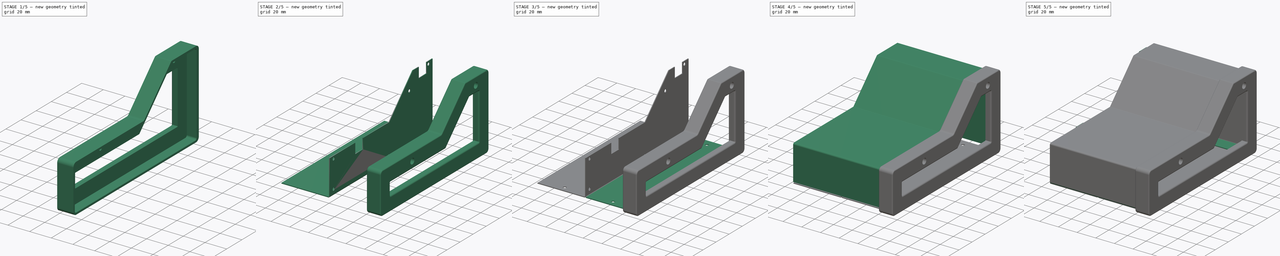
[diagram: build sequence overview — one tinted view per stage of 5, left to right]
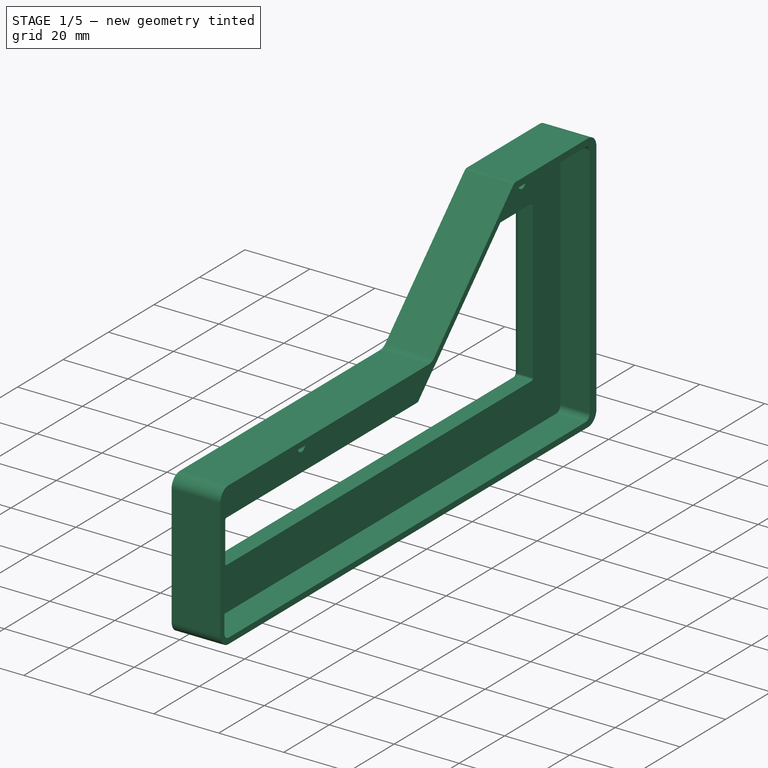
[diagram: stage 1 of 5 — iso view after this stage's code; geometry added in this stage tinted green]
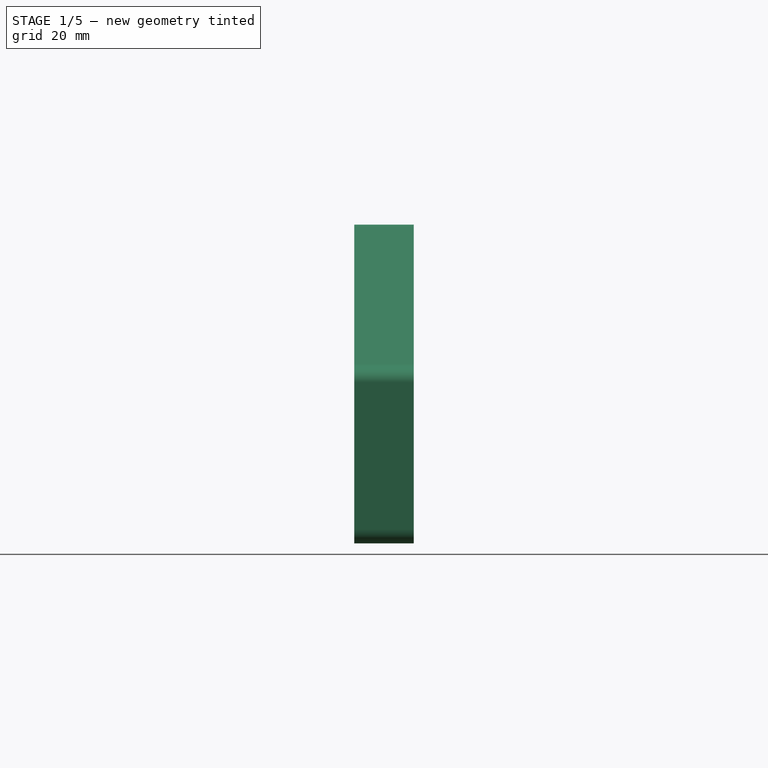
[diagram: stage 1 of 5 — front view after this stage's code; geometry added in this stage tinted green]
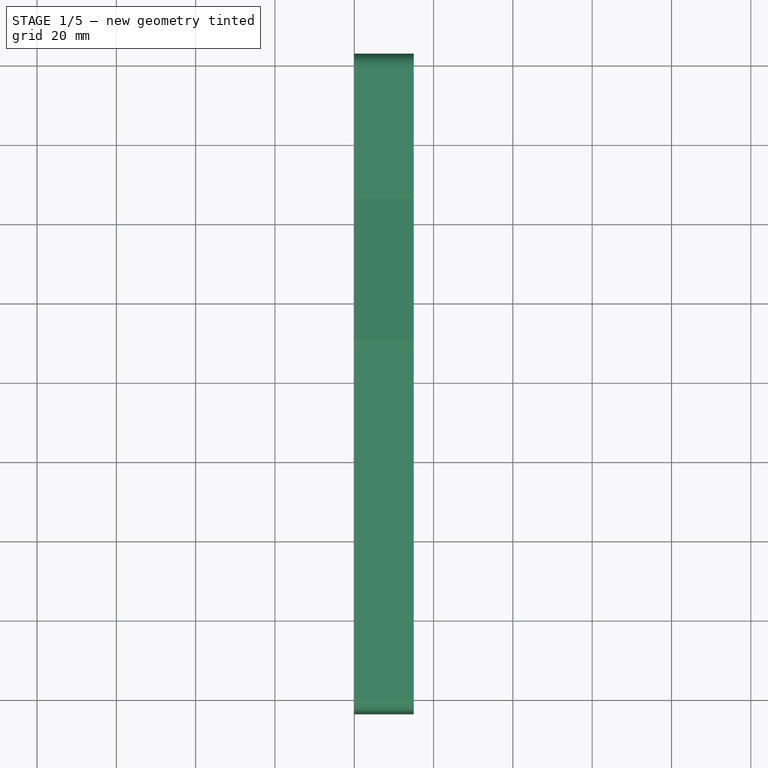
[diagram: stage 1 of 5 — top view after this stage's code; geometry added in this stage tinted green]
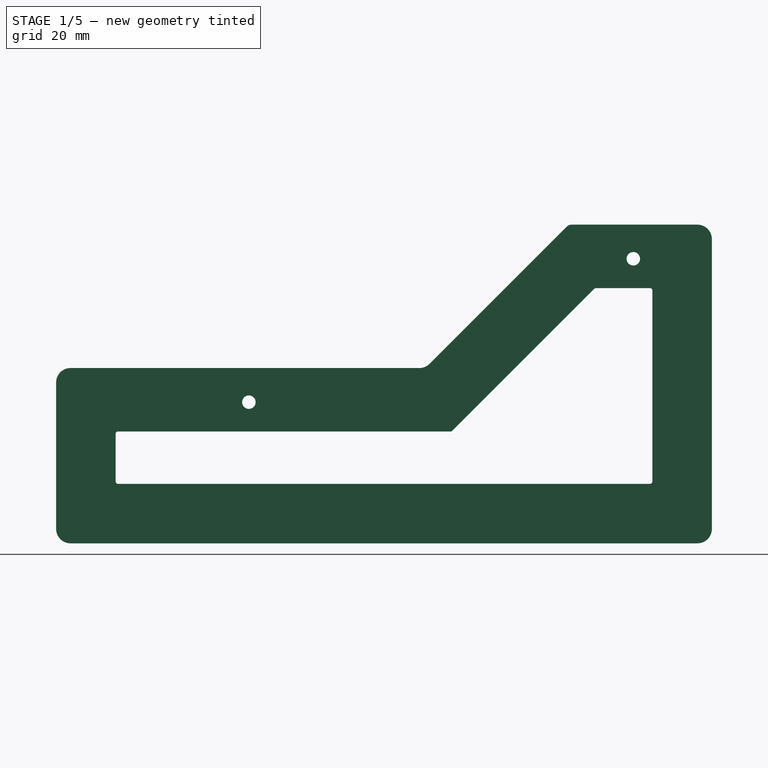
[diagram: stage 1 of 5 — right view after this stage's code; geometry added in this stage tinted green]
FCSTD DOCUMENT  (FreeCAD 0.21R33771 (Git))
Label: ADVtypeH_paramEnclosure
License: Public Domain
LicenseURL: https://en.wikipedia.org/wiki/Public_domain
objects: PartDesign::FeaturePython×10, Sketcher::SketchObject×8, PartDesign::Pad×5, PartDesign::Body×4, PartDesign::Pocket×3, PartDesign::Fillet×2, Spreadsheet::Sheet×1, PartDesign::Hole×1, Part::Mirroring×1
note: 45 computed .brp shape members not serialized (recipe doc carries the construction recipe); baked Part::Feature solids carry a one-line shape summary decoded from their .brp

FEATURE [PartDesign::Body] Body004  label="MetalSx"
  Group = -> [Sketch004,Pad004,Bend011,Sketch005,Pocket]
  Origin = -> Origin004
  Placement = pos=(-51.6,0,0) rot=(0,0,1;0rad)
  Tip = -> Pocket
  expr: .Placement.Base.x = -Spreadsheet.width / 2 - Spreadsheet.thickness * 2
FEATURE [Sketcher::SketchObject] Sketch006
  FullyConstrained = true
  MapMode = 5
  Placement = pos=(0,0,0) rot=(0.57735,0.57735,0.57735;2.0944rad)
  Support = -> [YZ_Plane005]
  expr: Constraints[0] = Spreadsheet.thickness * 2 + 2
  expr: Constraints[15] = Spreadsheet.thickness * 2 + 2
  expr: Constraints[16] = Spreadsheet.thickness * 2
  expr: Constraints[22] = -Spreadsheet.thickness
  expr: Constraints[23] = -Spreadsheet.height - Spreadsheet.thickness * 2 - 0.2
  expr: Constraints[27] = Spreadsheet.lengthC - 2
  expr: Constraints[28] = Spreadsheet.lengthB / 1.4142 + Spreadsheet.thickness * 2 + 2
  expr: Constraints[29] = Spreadsheet.lengthA + Spreadsheet.lengthB / 1.4142 + Spreadsheet.lengthC + Spreadsheet.thickness + 2
  expr: Constraints[32] = -Spreadsheet.thickness - 5
  expr: Constraints[33] = Spreadsheet.lengthC / 2
  expr: Constraints[34] = Spreadsheet.lengthB / 1.4142 - 5
  expr: Constraints[35] = Spreadsheet.lengthC + Spreadsheet.lengthB / 1.4142 + Spreadsheet.lengthA / 2 + Spreadsheet.thickness * 2
  sketch-geometry (26):
    g0: ArcOfCircle CenterX=0 CenterY=-0.8 CenterZ=0 NormalX=0 NormalY=0 NormalZ=1 AngleXU=0 Radius=3.6 StartAngle=1.5708 EndAngle=3.14159
    g1: LineSegment StartX=4e-16 StartY=2.8 StartZ=0 EndX=88 EndY=2.8 EndZ=0
    g2: ArcOfCircle CenterX=88 CenterY=6.4 CenterZ=0 NormalX=0 NormalY=0 NormalZ=1 AngleXU=0 Radius=3.6 StartAngle=4.71239 EndAngle=5.49779
    g3: LineSegment StartX=90.5456 StartY=3.85442 StartZ=0 EndX=125.178 EndY=38.487 EndZ=0
    g4: ArcOfCircle CenterX=126.31 CenterY=37.3557 CenterZ=0 NormalX=0 NormalY=0 NormalZ=1 AngleXU=0 Radius=1.6 StartAngle=1.5708 EndAngle=2.35619
    g5: LineSegment StartX=126.31 StartY=38.9557 StartZ=0 EndX=158.156 EndY=38.9557 EndZ=0
    g6: ArcOfCircle CenterX=158.156 CenterY=35.3557 CenterZ=0 NormalX=0 NormalY=0 NormalZ=1 AngleXU=0 Radius=3.6 StartAngle=8e-16 EndAngle=1.5708
    g7: LineSegment StartX=161.756 StartY=35.3557 StartZ=0 EndX=161.756 EndY=-37.8 EndZ=0
    g8: ArcOfCircle CenterX=158.156 CenterY=-37.8 CenterZ=0 NormalX=0 NormalY=0 NormalZ=1 AngleXU=0 Radius=3.6 StartAngle=4.71239 EndAngle=6.28319
    g9: LineSegment StartX=158.156 StartY=-41.4 StartZ=0 EndX=0 EndY=-41.4 EndZ=0
    g10: ArcOfCircle CenterX=-1e-16 CenterY=-37.8 CenterZ=0 NormalX=0 NormalY=0 NormalZ=1 AngleXU=0 Radius=3.6 StartAngle=3.14159 EndAngle=4.71239
    g11: LineSegment StartX=-3.6 StartY=-0.8 StartZ=0 EndX=-3.6 EndY=-37.8 EndZ=0
    g12: Circle CenterX=45 CenterY=-5.8 CenterZ=0 NormalX=0 NormalY=0 NormalZ=1 AngleXU=0 Radius=1.65
    g13: Circle CenterX=141.956 CenterY=30.3557 CenterZ=0 NormalX=0 NormalY=0 NormalZ=1 AngleXU=0 Radius=1.65
    g14: LineSegment StartX=12 StartY=-13.2 StartZ=0 EndX=95.8701 EndY=-13.2 EndZ=0
    g15: LineSegment StartX=96.2943 StartY=-13.0243 StartZ=0 EndX=132.099 EndY=22.7799 EndZ=0
    g16: LineSegment StartX=132.523 StartY=22.9557 StartZ=0 EndX=146.156 EndY=22.9557 EndZ=0
    g17: LineSegment StartX=146.756 StartY=22.3557 StartZ=0 EndX=146.756 EndY=-25.8 EndZ=0
    g18: LineSegment StartX=146.156 StartY=-26.4 StartZ=0 EndX=12 EndY=-26.4 EndZ=0
    g19: LineSegment StartX=11.4 StartY=-13.8 StartZ=0 EndX=11.4 EndY=-25.8 EndZ=0
    g20: ArcOfCircle CenterX=12 CenterY=-13.8 CenterZ=0 NormalX=0 NormalY=0 NormalZ=1 AngleXU=0 Radius=0.6 StartAngle=1.5708 EndAngle=3.14159
    g21: ArcOfCircle CenterX=12 CenterY=-25.8 CenterZ=0 NormalX=0 NormalY=0 NormalZ=1 AngleXU=0 Radius=0.6 StartAngle=3.14159 EndAngle=4.71239
    g22: ArcOfCircle CenterX=95.8701 CenterY=-12.6 CenterZ=0 NormalX=0 NormalY=0 NormalZ=1 AngleXU=0 Radius=0.6 StartAngle=4.71239 EndAngle=5.49779
    g23: ArcOfCircle CenterX=132.523 CenterY=22.3557 CenterZ=0 NormalX=0 NormalY=0 NormalZ=1 AngleXU=0 Radius=0.6 StartAngle=1.5708 EndAngle=2.35619
    g24: ArcOfCircle CenterX=146.156 CenterY=22.3557 CenterZ=0 NormalX=0 NormalY=0 NormalZ=1 AngleXU=0 Radius=0.6 StartAngle=-1.8e-15 EndAngle=1.5708
    g25: ArcOfCircle CenterX=146.156 CenterY=-25.8 CenterZ=0 NormalX=0 NormalY=0 NormalZ=1 AngleXU=0 Radius=0.6 StartAngle=4.71239 EndAngle=6.28319
  constraints (66):
    c: Radius(g0) = 3.6
    c: Horizontal(g1)
    c: Horizontal(g5)
    c: Tangent(g3,g2) = -1.5708
    c: Tangent(g2,g1) = -1.5708
    c: Tangent(g4,g3) = 1.5708
    c: Tangent(g5,g4) = 1.5708
    c: Vertical(g7)
    c: Tangent(g8,g7) = 1.5708
    c: Horizontal(g9)
    c: Vertical(g11)
    c: Tangent(g1,g0) = 1.5708
    c: Tangent(g11,g0) = -1.5708
    c: Tangent(g11,g10) = -1.5708
    c: Tangent(g10,g9) = 1.5708
    c: Radius(g2) = 3.6
    c: Radius(g4) = 1.6
    c: Tangent(g9,g8) = 1.5708
    c: Tangent(g6,g5) = 1.5708
    c: Tangent(g7,g6) = 1.5708
    c: Angle(g3) = 0.785398
    c: PointOnObject(g0,g-2)
    c: DistanceY(g0) = -0.8
    c: DistanceY(g10) = -37.8
    c: Equal(g10,g0)
    c: Equal(g0,g8)
    c: Equal(g0,g6)
    c: DistanceX(g1,g1) = 88
    c: DistanceY(g4) = 38.9557
    c: DistanceX(g8) = 158.156
    c: Equal(g12,g13)
    c: Diameter(g13) = 3.3
    c: DistanceY(g12) = -5.8
    c: DistanceX(g12) = 45
    c: DistanceY(g13) = 30.3557
    c: DistanceX(g13) = 141.956
    c: Horizontal(g14)
    c: Horizontal(g16)
    c: Vertical(g17)
    c: Horizontal(g18)
    c: Vertical(g19)
    c: Tangent(g25,g17) = 1.5708
    c: Tangent(g25,g18) = 1.5708
    c: Tangent(g17,g24) = 1.5708
    c: Tangent(g24,g16) = 1.5708
    c: Tangent(g23,g15) = 1.5708
    c: Tangent(g23,g16) = 1.5708
    c: Tangent(g22,g15) = -1.5708
    c: Tangent(g22,g14) = -1.5708
    c: Tangent(g20,g14) = 1.5708
    c: Tangent(g20,g19) = -1.5708
    c: Tangent(g21,g19) = -1.5708
    c: Tangent(g21,g18) = 1.5708
    c: Radius(g20) = 0.6
    c: Equal(g20,g21)
    c: Equal(g21,g25)
    c: Equal(g25,g24)
    c: Equal(g24,g23)
    c: Parallel(g15,g3)
    c: DistanceY(g16,g5) = 16
    c: DistanceX(g17,g6) = 15
    c: DistanceY(g8,g18) = 15
    c: Distance(g2,g15) = 16
    c: DistanceX(g0,g19) = 15
    c: DistanceY(g14,g0) = 16
    c: Equal(g20,g22)
FEATURE [PartDesign::Pad] Pad005
  Direction = (1,-2e-16,3e-16)
  Length = 15
  Length2 = 10
  Placement = pos=(0,0,0) rot=(1,1,1;2.0944rad)
  Profile = -> Sketch006
  ReferenceAxis = -> Sketch006 [N_Axis]
  Type = 0
FEATURE [Sketcher::SketchObject] Sketch007
  FullyConstrained = true
  MapMode = 5
  Placement = pos=(15,-6.7e-15,5e-15) rot=(0.57735,0.57735,0.57735;2.0944rad)
  Support = -> [Pad005]
  expr: Constraints[17] = -Spreadsheet.thickness
  expr: Constraints[18] = Spreadsheet.thickness * 2 + 0.2
  expr: Constraints[19] = Spreadsheet.height + Spreadsheet.thickness + 0.2
  expr: Constraints[27] = Spreadsheet.lengthC - Spreadsheet.thickness / 2.8284 - 0.2
  expr: Constraints[28] = Spreadsheet.lengthB / 1.4142 + Spreadsheet.thickness * 2
  expr: Constraints[29] = Spreadsheet.lengthA
  sketch-geometry (12):
    g0: LineSegment StartX=-1.8 StartY=-0.8 StartZ=0 EndX=-1.8 EndY=-37.8 EndZ=0
    g1: LineSegment StartX=0 StartY=-39.6 StartZ=0 EndX=156.964 EndY=-39.6 EndZ=0
    g2: LineSegment StartX=158.764 StartY=-37.8 StartZ=0 EndX=158.764 EndY=35.1557 EndZ=0
    g3: LineSegment StartX=126.964 StartY=36.9557 StartZ=0 EndX=156.964 EndY=36.9557 EndZ=0
    g4: LineSegment StartX=125.691 StartY=36.4285 StartZ=0 EndX=90.7899 EndY=1.52721 EndZ=0
    g5: LineSegment StartX=-2e-16 StartY=1 StartZ=0 EndX=89.5172 EndY=1 EndZ=0
    g6: ArcOfCircle CenterX=0 CenterY=-0.8 CenterZ=0 NormalX=0 NormalY=0 NormalZ=1 AngleXU=0 Radius=1.8 StartAngle=1.5708 EndAngle=3.14159
    g7: ArcOfCircle CenterX=0 CenterY=-37.8 CenterZ=0 NormalX=0 NormalY=0 NormalZ=1 AngleXU=0 Radius=1.8 StartAngle=3.14159 EndAngle=4.71239
    g8: ArcOfCircle CenterX=156.964 CenterY=-37.8 CenterZ=0 NormalX=0 NormalY=0 NormalZ=1 AngleXU=0 Radius=1.8 StartAngle=4.71239 EndAngle=6.28319
    g9: ArcOfCircle CenterX=156.964 CenterY=35.1557 CenterZ=0 NormalX=0 NormalY=0 NormalZ=1 AngleXU=0 Radius=1.8 StartAngle=-1.8e-15 EndAngle=1.5708
    g10: ArcOfCircle CenterX=126.964 CenterY=35.1557 CenterZ=0 NormalX=0 NormalY=0 NormalZ=1 AngleXU=0 Radius=1.8 StartAngle=1.5708 EndAngle=2.35619
    g11: ArcOfCircle CenterX=89.5172 CenterY=2.8 CenterZ=0 NormalX=0 NormalY=0 NormalZ=1 AngleXU=0 Radius=1.8 StartAngle=4.71239 EndAngle=5.49779
  constraints (30):
    c: Vertical(g0)
    c: Horizontal(g1)
    c: Vertical(g2)
    c: Horizontal(g3)
    c: Horizontal(g5)
    c: Tangent(g6,g5) = 1.5708
    c: Tangent(g6,g0) = -1.5708
    c: Tangent(g7,g0) = -1.5708
    c: Tangent(g8,g1) = -1.5708
    c: Tangent(g8,g2) = -1.5708
    c: Tangent(g9,g3) = 1.5708
    c: Tangent(g9,g2) = -1.5708
    c: Tangent(g10,g3) = 1.5708
    c: Tangent(g10,g4) = -1.5708
    c: Tangent(g11,g5) = -1.5708
    c: Tangent(g11,g4) = 1.5708
    c: PointOnObject(g6,g-2)
    c: DistanceY(g6) = -0.8
    c: Radius(g6) = 1.8
    c: DistanceY(g0,g0) = 37
    c: Tangent(g7,g1) = -1.5708
    c: PointOnObject(g7,g-2)
    c: Equal(g6,g9)
    c: Equal(g6,g8)
    c: Angle(g4) = -2.35619
    c: Equal(g6,g11)
    c: Equal(g6,g10)
    c: DistanceX(g-1,g11) = 89.5172
    c: DistanceY(g3) = 36.9557
    c: DistanceX(g3,g3) = 30
FEATURE [PartDesign::Pocket] Pocket001
  BaseFeature = -> Pad005
  Direction = (-1,4e-16,-4e-16)
  Length = 9
  Length2 = 5
  Placement = pos=(0,0,0) rot=(1,1,1;2.0944rad)
  Profile = -> Sketch007
  ReferenceAxis = -> Sketch007 [N_Axis]
  Type = 0
FEATURE [PartDesign::Hole] Hole
  BaseFeature = -> Pocket001
  CustomThreadClearance = 0
  Depth = 25
  DepthType = 0
  Diameter = 3.4
  DrillForDepth = false
  DrillPoint = 1
  DrillPointAngle = 118
  HoleCutCountersinkAngle = 90
  HoleCutCustomValues = false
  HoleCutDepth = 3.1
  HoleCutDiameter = 6.1
  HoleCutType = 3
  ModelThread = false
  Placement = pos=(0,0,0) rot=(1,1,1;2.0944rad)
  Profile = -> Pocket001 [Edge33,Edge32]
  Reversed = true
  Tapered = false
  TaperedAngle = 90
  ThreadClass = 0
  ThreadDepth = 25
  ThreadDepthType = 0
  ThreadDirection = 0
  ThreadFit = 0
  ThreadSize = 9
  ThreadType = 1
  Threaded = false
  UseCustomThreadClearance = false
FEATURE [PartDesign::Fillet] Fillet
  Base = -> Hole [Edge30,Edge28,Edge26,Edge32,Edge31,Edge29,Edge27,Edge25,Edge23,Edge21,Edge22,Edge24]
  BaseFeature = -> Hole
  Placement = pos=(0,0,0) rot=(1,1,1;2.0944rad)
  Radius = 1.5
  SupportTransform = false
  UseAllEdges = false
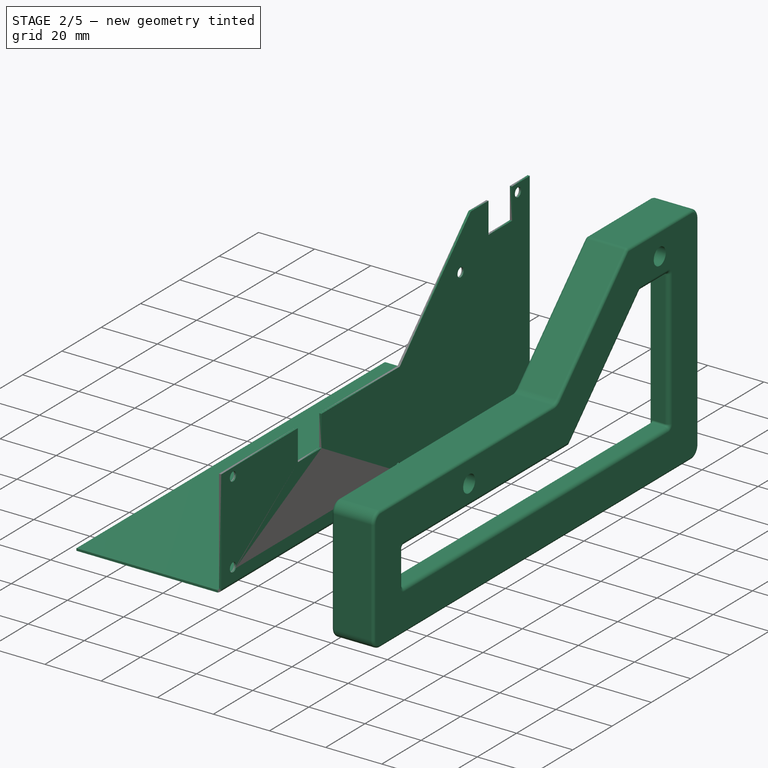
[diagram: stage 2 of 5 — iso view after this stage's code; geometry added in this stage tinted green]
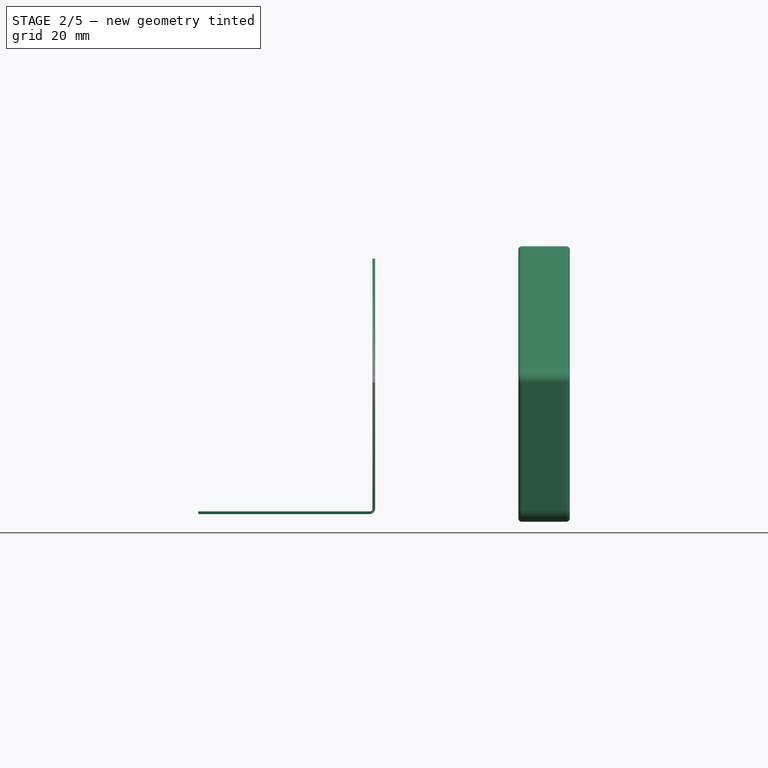
[diagram: stage 2 of 5 — front view after this stage's code; geometry added in this stage tinted green]
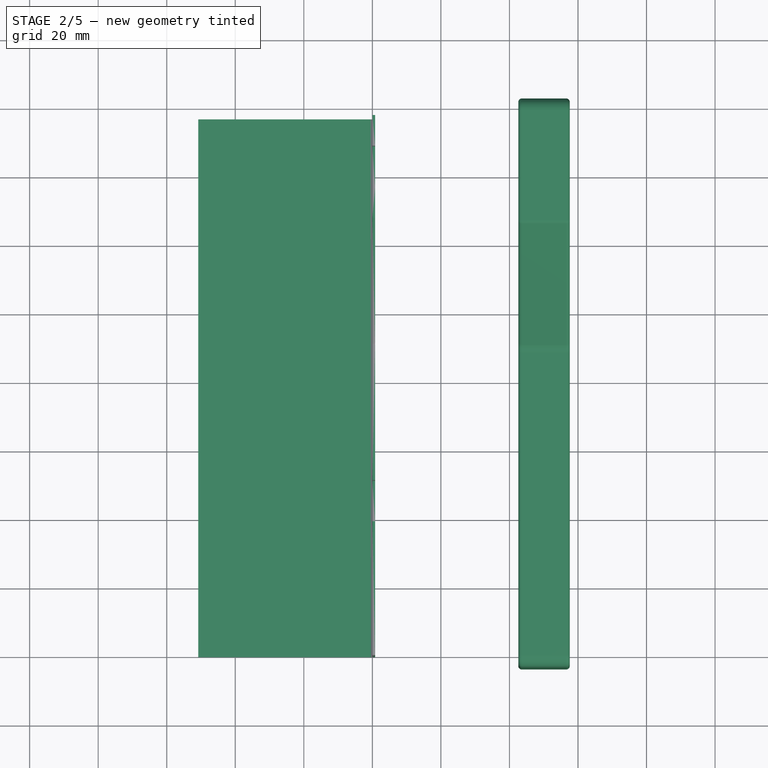
[diagram: stage 2 of 5 — top view after this stage's code; geometry added in this stage tinted green]
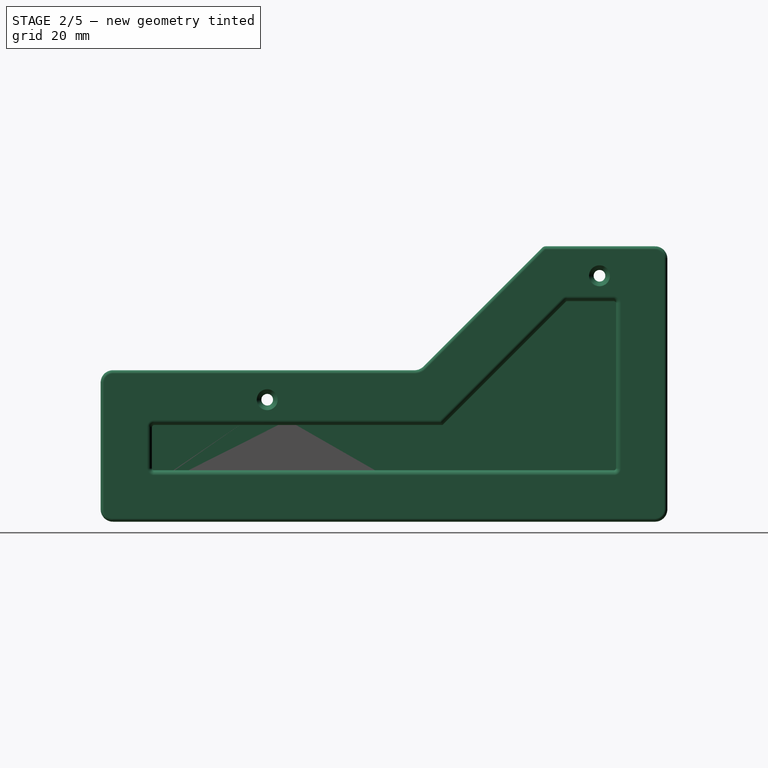
[diagram: stage 2 of 5 — right view after this stage's code; geometry added in this stage tinted green]
FEATURE [PartDesign::Body] Body  label="MetalTop"
  Group = -> [Sketch,Pad,Bend,Bend001,Bend002,Bend003,Bend004,Bend005,Bend008,Bend009]
  Origin = -> Origin
  Tip = -> Bend009
FEATURE [Sketcher::SketchObject] Sketch003
  FullyConstrained = true
  MapMode = 5
  Placement = pos=(0,0,0) rot=(0.57735,0.57735,0.57735;2.0944rad)
  Support = -> [YZ_Plane003]
  expr: Constraints[28] = Spreadsheet.height + Spreadsheet.thickness
  expr: Constraints[29] = -Spreadsheet.thickness
  expr: Constraints[30] = Spreadsheet.lengthC / 2 - 6
  expr: Constraints[34] = Spreadsheet.lengthC / 2 - 6 + Spreadsheet.thickness
  expr: Constraints[35] = Spreadsheet.lengthB + Spreadsheet.thickness * 1.4142
  expr: Constraints[36] = Spreadsheet.lengthA / 2 - 6
  expr: Constraints[41] = Spreadsheet.lengthA / 2 - 6
  expr: Constraints[47] = -Spreadsheet.height + 3
  expr: Constraints[48] = -Spreadsheet.height + 3
  expr: Constraints[49] = -Spreadsheet.height + 3
  expr: Constraints[50] = 3.2
  expr: Constraints[51] = Spreadsheet.lengthC
  expr: Constraints[56] = Spreadsheet.lengthB / 1.4142 - 3
  expr: Constraints[58] = Spreadsheet.lengthC + Spreadsheet.lengthB / 2.8284 + 14.1
  expr: Constraints[59] = Spreadsheet.lengthB / 2.8284
  sketch-geometry (20):
    g0: LineSegment StartX=0 StartY=-0.8 StartZ=0 EndX=0 EndY=-37.6 EndZ=0
    g1: LineSegment StartX=0 StartY=-0.8 StartZ=0 EndX=39 EndY=-0.8 EndZ=0
    g2: LineSegment StartX=39 StartY=-0.8 StartZ=0 EndX=39 EndY=-11.8 EndZ=0
    g3: LineSegment StartX=39 StartY=-11.8 StartZ=0 EndX=51 EndY=-11.8 EndZ=0
    g4: LineSegment StartX=51 StartY=-11.8 StartZ=0 EndX=51 EndY=-0.8 EndZ=0
    g5: LineSegment StartX=51 StartY=-0.8 StartZ=0 EndX=90.8 EndY=-0.8 EndZ=0
    g6: LineSegment StartX=90.8 StartY=-0.8 StartZ=0 EndX=126.955 EndY=35.3553 EndZ=0
    g7: LineSegment StartX=126.955 StartY=35.3553 StartZ=0 EndX=135.955 EndY=35.3553 EndZ=0
    g8: LineSegment StartX=135.955 StartY=35.3553 StartZ=0 EndX=135.955 EndY=24.3553 EndZ=0
    g9: LineSegment StartX=135.955 StartY=24.3553 StartZ=0 EndX=147.955 EndY=24.3553 EndZ=0
    g10: LineSegment StartX=147.955 StartY=24.3553 StartZ=0 EndX=147.955 EndY=35.3553 EndZ=0
    g11: LineSegment StartX=147.955 StartY=35.3553 StartZ=0 EndX=156.955 EndY=35.3553 EndZ=0
    g12: LineSegment StartX=156.955 StartY=35.3553 StartZ=0 EndX=156.955 EndY=-37.6 EndZ=0
    g13: LineSegment StartX=0 StartY=-37.6 StartZ=0 EndX=156.955 EndY=-37.6 EndZ=0
    g14: Circle CenterX=6 CenterY=-3.8 CenterZ=0 NormalX=0 NormalY=0 NormalZ=1 AngleXU=0 Radius=1.6
    g15: Circle CenterX=6 CenterY=-33 CenterZ=0 NormalX=0 NormalY=0 NormalZ=1 AngleXU=0 Radius=1.6
    g16: Circle CenterX=90 CenterY=-33 CenterZ=0 NormalX=0 NormalY=0 NormalZ=1 AngleXU=0 Radius=1.6
    g17: Circle CenterX=150.955 CenterY=-33 CenterZ=0 NormalX=0 NormalY=0 NormalZ=1 AngleXU=0 Radius=1.6
    g18: Circle CenterX=150.955 CenterY=32.3557 CenterZ=0 NormalX=0 NormalY=0 NormalZ=1 AngleXU=0 Radius=1.6
    g19: Circle CenterX=121.778 CenterY=17.6778 CenterZ=0 NormalX=0 NormalY=0 NormalZ=1 AngleXU=0 Radius=1.6
  constraints (60):
    c: PointOnObject(g0,g-2)
    c: PointOnObject(g0,g-2)
    c: Coincident(g1,g0)
    c: Horizontal(g1)
    c: Coincident(g2,g1)
    c: Vertical(g2)
    c: Coincident(g3,g2)
    c: Horizontal(g3)
    c: Coincident(g4,g3)
    c: Vertical(g4)
    c: Coincident(g5,g4)
    c: Horizontal(g5)
    c: Coincident(g6,g5)
    c: Coincident(g7,g6)
    c: Horizontal(g7)
    c: Coincident(g8,g7)
    c: Vertical(g8)
    c: Coincident(g9,g8)
    c: Horizontal(g9)
    c: Vertical(g10)
    c: Coincident(g11,g10)
    c: Horizontal(g11)
    c: Coincident(g12,g11)
    c: Vertical(g12)
    c: Coincident(g13,g0)
    c: Coincident(g13,g12)
    c: Horizontal(g13)
    c: Angle(g6) = 0.785398
    c: DistanceY(g0,g0) = 36.8
    c: DistanceY(g0) = -0.8
    c: DistanceX(g1,g1) = 39
    c: DistanceX(g3,g3) = 12
    c: DistanceY(g2,g2) = 11
    c: DistanceY(g4,g4) = 11
    c: DistanceX(g5,g5) = 39.8
    c: Distance(g6) = 51.1314
    c: DistanceX(g7,g7) = 9
    c: DistanceY(g8,g8) = 11
    c: DistanceY(g10,g10) = 11
    c: Coincident(g9,g10)
    c: DistanceX(g9,g9) = 12
    c: DistanceX(g11,g11) = 9
    c: Equal(g14,g15)
    c: Equal(g15,g16)
    c: Equal(g16,g17)
    c: Equal(g17,g18)
    c: Equal(g18,g19)
    c: DistanceY(g15) = -33
    c: DistanceY(g16) = -33
    c: DistanceY(g17) = -33
    c: Diameter(g14) = 3.2
    c: DistanceX(g16) = 90
    c: DistanceX(g15) = 6
    c: DistanceX(g14) = 6
    c: DistanceX(g17,g12) = 6
    c: DistanceX(g18,g11) = 6
    c: DistanceY(g18) = 32.3557
    c: DistanceY(g14,g0) = 3
    c: DistanceX(g19) = 121.778
    c: DistanceY(g19) = 17.6778
FEATURE [PartDesign::Pad] Pad003
  Direction = (1,-2e-16,3e-16)
  Length = 0.8
  Length2 = 10
  Placement = pos=(0,0,0) rot=(1,1,1;2.0944rad)
  Profile = -> Sketch003
  ReferenceAxis = -> Sketch003 [N_Axis]
  Type = 0
  expr: Length = Spreadsheet.thickness
FEATURE [PartDesign::FeaturePython] Bend010  # WARN: FeaturePython — macro-defined, semantics opaque (R4)
  AutoMiter = true
  BaseFeature = -> Pad003
  BendType = 0
  LengthList = [50]
  LengthSpec = 0
  ReliefFactor = 0.7
  UseReliefFactor = false
  angle = 90
  baseObject = -> Pad003 [Edge6]
  bendAList = [90]
  extend1 = 0
  extend2 = 0
  gap1 = 0
  gap2 = 0
  invert = true
  kfactor = 0.5
  length = 50
  maxExtendDist = 5
  minGap = 0.1
  minReliefGap = 1
  miterangle1 = 0
  miterangle2 = 0
  offset = 0
  radius = 0.8
  reliefType = 0
  reliefd = 1
  reliefw = 0.8
  sketchflip = false
  sketchinvert = false
  unfold = false
  expr: length = Spreadsheet.width / 2
  expr: radius = Spreadsheet.thickness
FEATURE [PartDesign::Fillet] Fillet001
  Base = -> Fillet [Face19,Face17,Face15,Face13,Face14,Face16,Face18,Face20,Face22,Face24,Face23,Face21]
  BaseFeature = -> Fillet
  Placement = pos=(0,0,0) rot=(1,1,1;2.0944rad)
  Radius = 1
  SupportTransform = false
  UseAllEdges = false
FEATURE [Sketcher::SketchObject] Sketch008
  FullyConstrained = true
  MapMode = 5
  Placement = pos=(6,-5.3e-15,4e-15) rot=(0.57735,0.57735,0.57735;2.0944rad)
  Support = -> [Fillet001]
  expr: Constraints[11] = -Spreadsheet.height + 3
  expr: Constraints[13] = Spreadsheet.lengthA + Spreadsheet.lengthB / 1.4142 + Spreadsheet.thickness * 2 + Spreadsheet.lengthC - 6
  expr: Constraints[15] = Spreadsheet.lengthA + Spreadsheet.lengthB / 1.4142 + Spreadsheet.thickness * 2 + Spreadsheet.lengthC - 6
  expr: Constraints[16] = Spreadsheet.lengthB / 1.4142 - 3
  expr: Constraints[17] = Spreadsheet.lengthB / 2.8284
  expr: Constraints[2] = -Spreadsheet.thickness - 3
  expr: Constraints[5] = -Spreadsheet.height + 3
  expr: Constraints[6] = -Spreadsheet.height + 3
  expr: Constraints[7] = Spreadsheet.lengthC
  expr: Constraints[9] = Spreadsheet.lengthC + Spreadsheet.lengthB / 2.8284 + 14.1
  sketch-geometry (6):
    g0: Circle CenterX=6 CenterY=-3.8 CenterZ=0 NormalX=0 NormalY=0 NormalZ=1 AngleXU=0 Radius=1.5
    g1: Circle CenterX=6 CenterY=-33 CenterZ=0 NormalX=0 NormalY=0 NormalZ=1 AngleXU=0 Radius=1.5
    g2: Circle CenterX=90 CenterY=-33 CenterZ=0 NormalX=0 NormalY=0 NormalZ=1 AngleXU=0 Radius=1.5
    g3: Circle CenterX=121.778 CenterY=17.6778 CenterZ=0 NormalX=0 NormalY=0 NormalZ=1 AngleXU=0 Radius=1.5
    g4: Circle CenterX=150.956 CenterY=32.3557 CenterZ=0 NormalX=0 NormalY=0 NormalZ=1 AngleXU=0 Radius=1.5
    g5: Circle CenterX=150.956 CenterY=-33 CenterZ=0 NormalX=0 NormalY=0 NormalZ=1 AngleXU=0 Radius=1.5
  constraints (18):
    c: Diameter(g0) = 3
    c: DistanceX(g0) = 6
    c: DistanceY(g0) = -3.8
    c: Equal(g0,g1)
    c: DistanceX(g1) = 6
    c: DistanceY(g1) = -33
    c: DistanceY(g2) = -33
    c: DistanceX(g2) = 90
    c: Equal(g1,g2)
    c: DistanceX(g3) = 121.778
    c: Equal(g2,g3)
    c: DistanceY(g5) = -33
    c: Equal(g2,g5)
    c: DistanceX(g5) = 150.956
    c: Equal(g5,g4)
    c: DistanceX(g4) = 150.956
    c: DistanceY(g4) = 32.3557
    c: DistanceY(g3) = 17.6778
FEATURE [PartDesign::Pad] Pad006
  BaseFeature = -> Fillet001
  Direction = (1,-8e-16,6e-16)
  Length = 1.8
  Length2 = 10
  Placement = pos=(0,0,0) rot=(1,1,1;2.0944rad)
  Profile = -> Sketch008
  ReferenceAxis = -> Sketch008 [N_Axis]
  Type = 0
  expr: Length = Spreadsheet.thickness + 1
FEATURE [PartDesign::Body] Body003  label="MetalDx"
  Group = -> [Sketch003,Pad003,Bend010,Sketch009,Pocket002]
  Origin = -> Origin003
  Placement = pos=(50.8,0,0) rot=(0,0,1;0rad)
  Tip = -> Pocket002
  expr: .Placement.Base.x = Spreadsheet.width / 2 + Spreadsheet.thickness
FEATURE [Part::Mirroring] Part__Mirroring  label="FrameDx"
  Base = (0,0,0)
  Normal = (1,0,0)
  Source = -> Body005
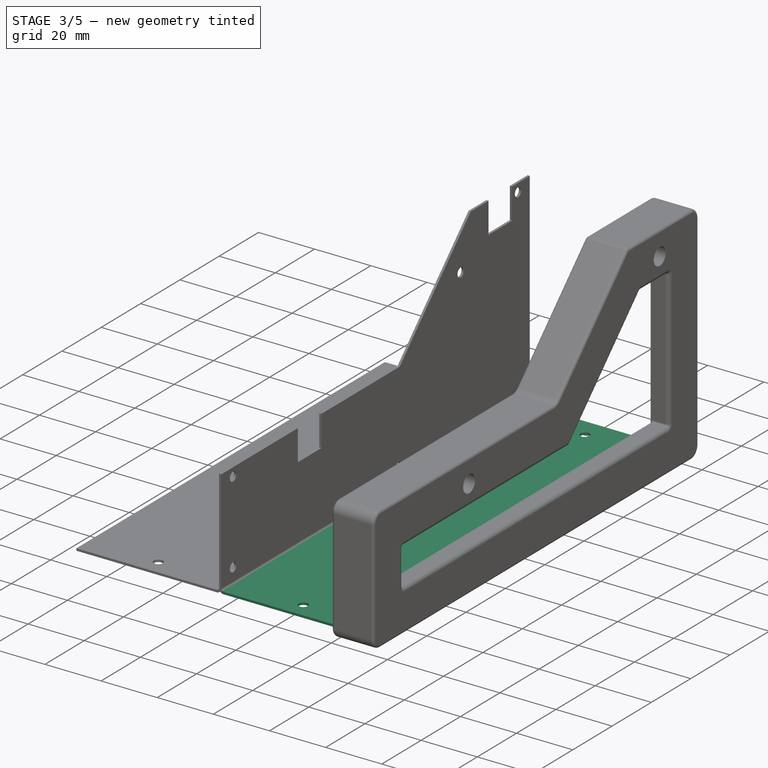
[diagram: stage 3 of 5 — iso view after this stage's code; geometry added in this stage tinted green]
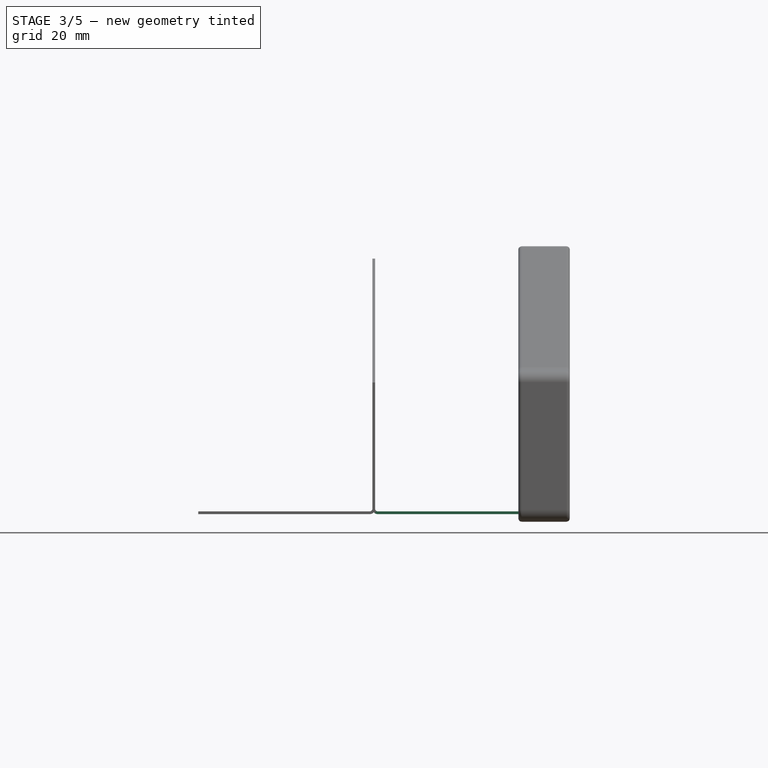
[diagram: stage 3 of 5 — front view after this stage's code; geometry added in this stage tinted green]
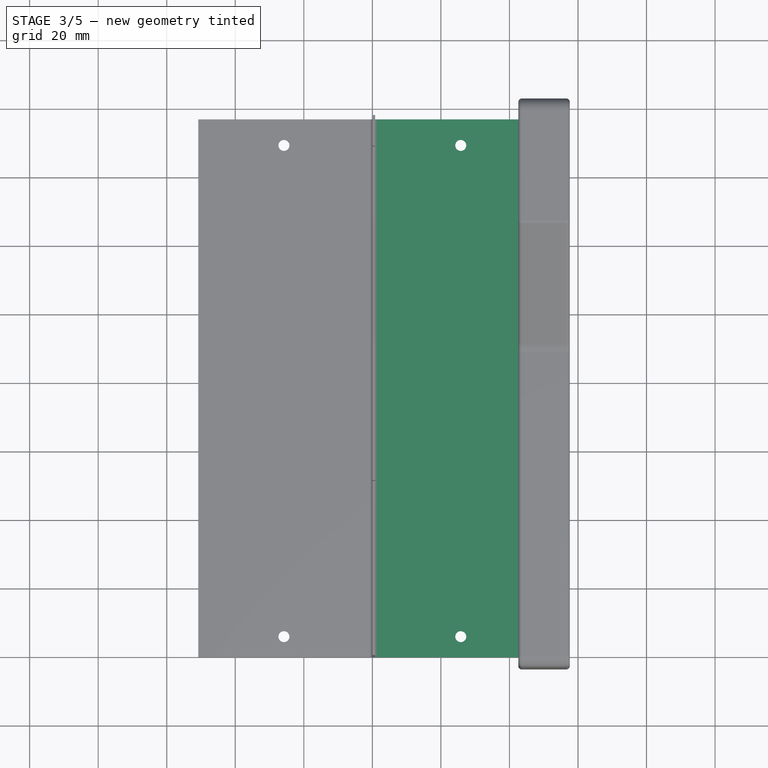
[diagram: stage 3 of 5 — top view after this stage's code; geometry added in this stage tinted green]
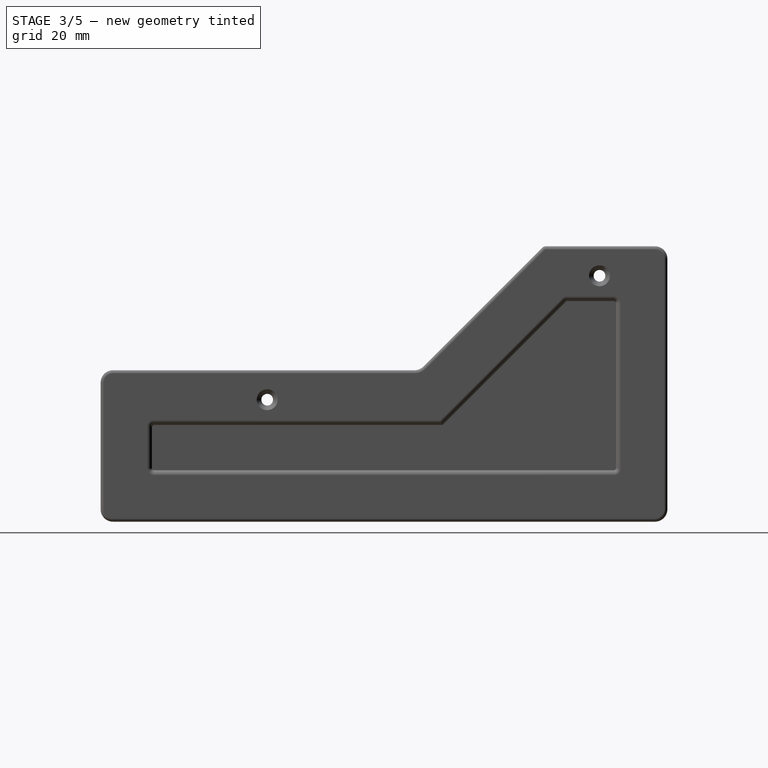
[diagram: stage 3 of 5 — right view after this stage's code; geometry added in this stage tinted green]
FEATURE [Sketcher::SketchObject] Sketch004
  FullyConstrained = true
  MapMode = 5
  Placement = pos=(0,0,0) rot=(0.57735,0.57735,0.57735;2.0944rad)
  Support = -> [YZ_Plane004]
  expr: Constraints[28] = Spreadsheet.height + Spreadsheet.thickness
  expr: Constraints[29] = -Spreadsheet.thickness
  expr: Constraints[30] = Spreadsheet.lengthC / 2 - 6
  expr: Constraints[34] = Spreadsheet.lengthC / 2 - 6 + Spreadsheet.thickness
  expr: Constraints[35] = Spreadsheet.lengthB + Spreadsheet.thickness * 1.4142
  expr: Constraints[36] = Spreadsheet.lengthA / 2 - 6
  expr: Constraints[41] = Spreadsheet.lengthA / 2 - 6
  expr: Constraints[47] = -Spreadsheet.height + 3
  expr: Constraints[48] = -Spreadsheet.height + 3
  expr: Constraints[49] = -Spreadsheet.height + 3
  expr: Constraints[50] = 3.2
  expr: Constraints[51] = Spreadsheet.lengthC
  expr: Constraints[56] = Spreadsheet.lengthB / 1.4142 - 3
  expr: Constraints[58] = Spreadsheet.lengthC + Spreadsheet.lengthB / 2.8284 + 14.1
  expr: Constraints[59] = Spreadsheet.lengthB / 2.8284
  sketch-geometry (20):
    g0: LineSegment StartX=0 StartY=-0.8 StartZ=0 EndX=0 EndY=-37.6 EndZ=0
    g1: LineSegment StartX=0 StartY=-0.8 StartZ=0 EndX=39 EndY=-0.8 EndZ=0
    g2: LineSegment StartX=39 StartY=-0.8 StartZ=0 EndX=39 EndY=-11.8 EndZ=0
    g3: LineSegment StartX=39 StartY=-11.8 StartZ=0 EndX=51 EndY=-11.8 EndZ=0
    g4: LineSegment StartX=51 StartY=-11.8 StartZ=0 EndX=51 EndY=-0.8 EndZ=0
    g5: LineSegment StartX=51 StartY=-0.8 StartZ=0 EndX=90.8 EndY=-0.8 EndZ=0
    g6: LineSegment StartX=90.8 StartY=-0.8 StartZ=0 EndX=126.955 EndY=35.3553 EndZ=0
    g7: LineSegment StartX=126.955 StartY=35.3553 StartZ=0 EndX=135.955 EndY=35.3553 EndZ=0
    g8: LineSegment StartX=135.955 StartY=35.3553 StartZ=0 EndX=135.955 EndY=24.3553 EndZ=0
    g9: LineSegment StartX=135.955 StartY=24.3553 StartZ=0 EndX=147.955 EndY=24.3553 EndZ=0
    g10: LineSegment StartX=147.955 StartY=24.3553 StartZ=0 EndX=147.955 EndY=35.3553 EndZ=0
    g11: LineSegment StartX=147.955 StartY=35.3553 StartZ=0 EndX=156.955 EndY=35.3553 EndZ=0
    g12: LineSegment StartX=156.955 StartY=35.3553 StartZ=0 EndX=156.955 EndY=-37.6 EndZ=0
    g13: LineSegment StartX=0 StartY=-37.6 StartZ=0 EndX=156.955 EndY=-37.6 EndZ=0
    g14: Circle CenterX=6 CenterY=-3.8 CenterZ=0 NormalX=0 NormalY=0 NormalZ=1 AngleXU=0 Radius=1.6
    g15: Circle CenterX=6 CenterY=-33 CenterZ=0 NormalX=0 NormalY=0 NormalZ=1 AngleXU=0 Radius=1.6
    g16: Circle CenterX=90 CenterY=-33 CenterZ=0 NormalX=0 NormalY=0 NormalZ=1 AngleXU=0 Radius=1.6
    g17: Circle CenterX=150.955 CenterY=-33 CenterZ=0 NormalX=0 NormalY=0 NormalZ=1 AngleXU=0 Radius=1.6
    g18: Circle CenterX=150.955 CenterY=32.3557 CenterZ=0 NormalX=0 NormalY=0 NormalZ=1 AngleXU=0 Radius=1.6
    g19: Circle CenterX=121.778 CenterY=17.6778 CenterZ=0 NormalX=0 NormalY=0 NormalZ=1 AngleXU=0 Radius=1.6
  constraints (60):
    c: PointOnObject(g0,g-2)
    c: PointOnObject(g0,g-2)
    c: Coincident(g1,g0)
    c: Horizontal(g1)
    c: Coincident(g2,g1)
    c: Vertical(g2)
    c: Coincident(g3,g2)
    c: Horizontal(g3)
    c: Coincident(g4,g3)
    c: Vertical(g4)
    c: Coincident(g5,g4)
    c: Horizontal(g5)
    c: Coincident(g6,g5)
    c: Coincident(g7,g6)
    c: Horizontal(g7)
    c: Coincident(g8,g7)
    c: Vertical(g8)
    c: Coincident(g9,g8)
    c: Horizontal(g9)
    c: Vertical(g10)
    c: Coincident(g11,g10)
    c: Horizontal(g11)
    c: Coincident(g12,g11)
    c: Vertical(g12)
    c: Coincident(g13,g0)
    c: Coincident(g13,g12)
    c: Horizontal(g13)
    c: Angle(g6) = 0.785398
    c: DistanceY(g0,g0) = 36.8
    c: DistanceY(g0) = -0.8
    c: DistanceX(g1,g1) = 39
    c: DistanceX(g3,g3) = 12
    c: DistanceY(g2,g2) = 11
    c: DistanceY(g4,g4) = 11
    c: DistanceX(g5,g5) = 39.8
    c: Distance(g6) = 51.1314
    c: DistanceX(g7,g7) = 9
    c: DistanceY(g8,g8) = 11
    c: DistanceY(g10,g10) = 11
    c: Coincident(g9,g10)
    c: DistanceX(g9,g9) = 12
    c: DistanceX(g11,g11) = 9
    c: Equal(g14,g15)
    c: Equal(g15,g16)
    c: Equal(g16,g17)
    c: Equal(g17,g18)
    c: Equal(g18,g19)
    c: DistanceY(g15) = -33
    c: DistanceY(g16) = -33
    c: DistanceY(g17) = -33
    c: Diameter(g14) = 3.2
    c: DistanceX(g16) = 90
    c: DistanceX(g15) = 6
    c: DistanceX(g14) = 6
    c: DistanceX(g17,g12) = 6
    c: DistanceX(g18,g11) = 6
    c: DistanceY(g18) = 32.3557
    c: DistanceY(g14,g0) = 3
    c: DistanceX(g19) = 121.778
    c: DistanceY(g19) = 17.6778
FEATURE [PartDesign::Pad] Pad004
  Direction = (1,-2e-16,3e-16)
  Length = 0.8
  Length2 = 10
  Placement = pos=(0,0,0) rot=(1,1,1;2.0944rad)
  Profile = -> Sketch004
  ReferenceAxis = -> Sketch004 [N_Axis]
  Type = 0
  expr: Length = Spreadsheet.thickness
FEATURE [PartDesign::FeaturePython] Bend011  # WARN: FeaturePython — macro-defined, semantics opaque (R4)
  AutoMiter = true
  BaseFeature = -> Pad004
  BendType = 0
  LengthList = [50]
  LengthSpec = 0
  ReliefFactor = 0.7
  UseReliefFactor = false
  angle = 90
  baseObject = -> Pad004 [Edge6]
  bendAList = [90]
  extend1 = 0
  extend2 = 0
  gap1 = 0
  gap2 = 0
  invert = false
  kfactor = 0.5
  length = 50
  maxExtendDist = 5
  minGap = 0.1
  minReliefGap = 1
  miterangle1 = 0
  miterangle2 = 0
  offset = 0
  radius = 0.8
  reliefType = 0
  reliefd = 1
  reliefw = 0.8
  sketchflip = false
  sketchinvert = false
  unfold = false
  expr: length = Spreadsheet.width / 2
  expr: radius = Spreadsheet.thickness
FEATURE [Sketcher::SketchObject] Sketch005
  FullyConstrained = true
  MapMode = 5
  Placement = pos=(1.09e-14,-2.13e-14,-39.2) rot=(1,0,0;3.14159rad)
  Support = -> [Bend011]
  expr: Constraints[3] = Spreadsheet.width / 4 + Spreadsheet.thickness
  expr: Constraints[4] = Spreadsheet.width / 4 + Spreadsheet.thickness
  expr: Constraints[5] = -Spreadsheet.lengthA - Spreadsheet.lengthB / 1.4142 - Spreadsheet.lengthC + 6
  sketch-geometry (2):
    g0: Circle CenterX=25.8 CenterY=-6 CenterZ=0 NormalX=0 NormalY=0 NormalZ=1 AngleXU=0 Radius=1.6
    g1: Circle CenterX=25.8 CenterY=-149.356 CenterZ=0 NormalX=0 NormalY=0 NormalZ=1 AngleXU=0 Radius=1.6
  constraints (6):
    c: Equal(g1,g0)
    c: Diameter(g0) = 3.2
    c: DistanceY(g0) = -6
    c: DistanceX(g0) = 25.8
    c: DistanceX(g1) = 25.8
    c: DistanceY(g1) = -149.356
FEATURE [PartDesign::Pocket] Pocket
  BaseFeature = -> Bend011
  Direction = (-3e-16,5e-16,1)
  Length = 5
  Length2 = 5
  Profile = -> Sketch005
  ReferenceAxis = -> Sketch005 [N_Axis]
  Type = 0
FEATURE [PartDesign::Body] Body005  label="FrameSx"
  Group = -> [Sketch006,Pad005,Sketch007,Pocket001,Hole,Fillet,Fillet001,Sketch008,Pad006]
  Origin = -> Origin005
  Placement = pos=(-57.6,0,0) rot=(0,0,1;0rad)
  Tip = -> Pad006
  expr: .Placement.Base.x = -Spreadsheet.width / 2 - Spreadsheet.thickness * 2 - 6
FEATURE [Sketcher::SketchObject] Sketch009
  FullyConstrained = true
  MapMode = 5
  Placement = pos=(1.96e-14,-2.13e-14,-39.2) rot=(1,0,0;3.14159rad)
  Support = -> [Bend010]
  expr: Constraints[3] = -Spreadsheet.width / 4 - Spreadsheet.thickness
  expr: Constraints[4] = -Spreadsheet.width / 4 - Spreadsheet.thickness
  expr: Constraints[5] = -Spreadsheet.lengthA - Spreadsheet.lengthB / 1.4142 - Spreadsheet.lengthC + 6
  sketch-geometry (2):
    g0: Circle CenterX=-25.8 CenterY=-6 CenterZ=0 NormalX=0 NormalY=0 NormalZ=1 AngleXU=0 Radius=1.6
    g1: Circle CenterX=-25.8 CenterY=-149.356 CenterZ=0 NormalX=0 NormalY=0 NormalZ=1 AngleXU=0 Radius=1.6
  constraints (6):
    c: Diameter(g0) = 3.2
    c: Diameter(g1) = 3.2
    c: DistanceY(g0) = -6
    c: DistanceX(g0) = -25.8
    c: DistanceX(g1) = -25.8
    c: DistanceY(g1) = -149.356
FEATURE [PartDesign::Pocket] Pocket002
  BaseFeature = -> Bend010
  Direction = (-5e-16,5e-16,1)
  Length = 5
  Length2 = 5
  Profile = -> Sketch009
  ReferenceAxis = -> Sketch009 [N_Axis]
  Type = 0
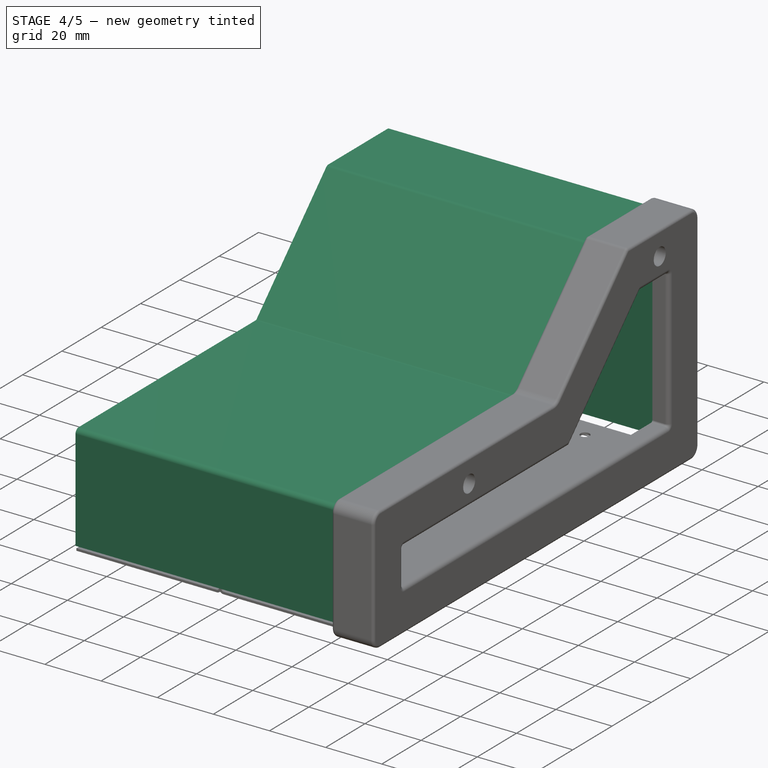
[diagram: stage 4 of 5 — iso view after this stage's code; geometry added in this stage tinted green]
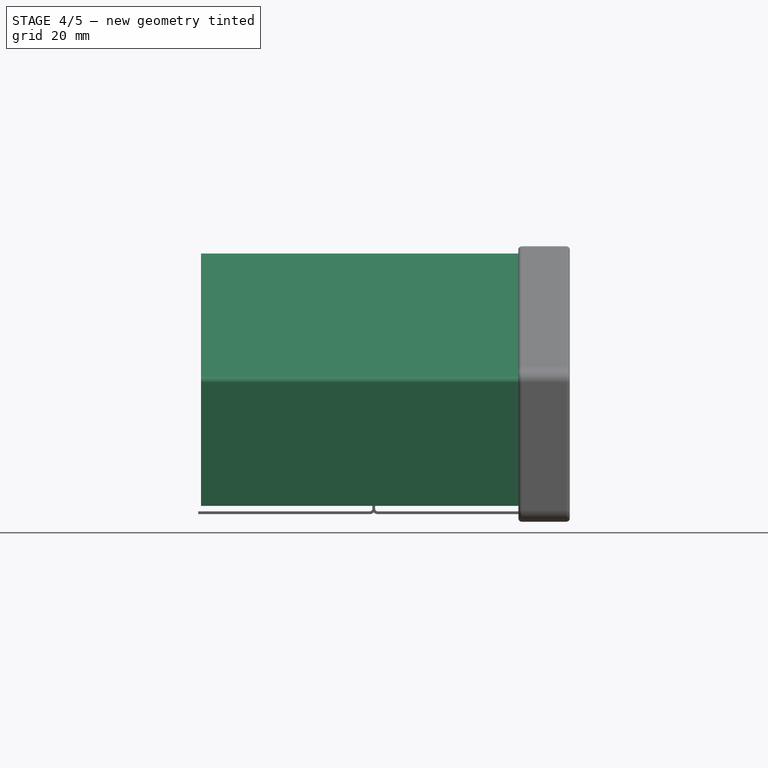
[diagram: stage 4 of 5 — front view after this stage's code; geometry added in this stage tinted green]
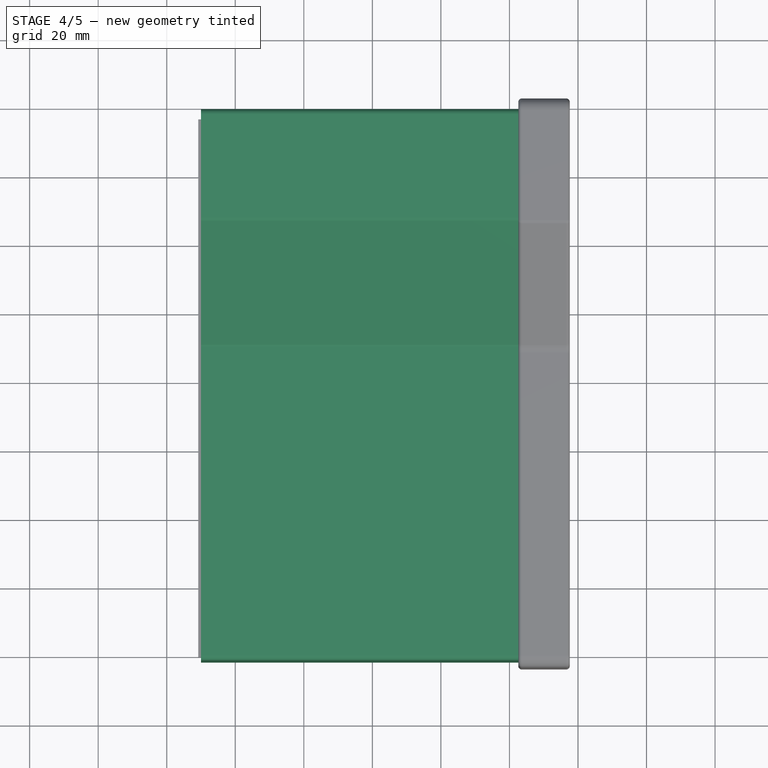
[diagram: stage 4 of 5 — top view after this stage's code; geometry added in this stage tinted green]
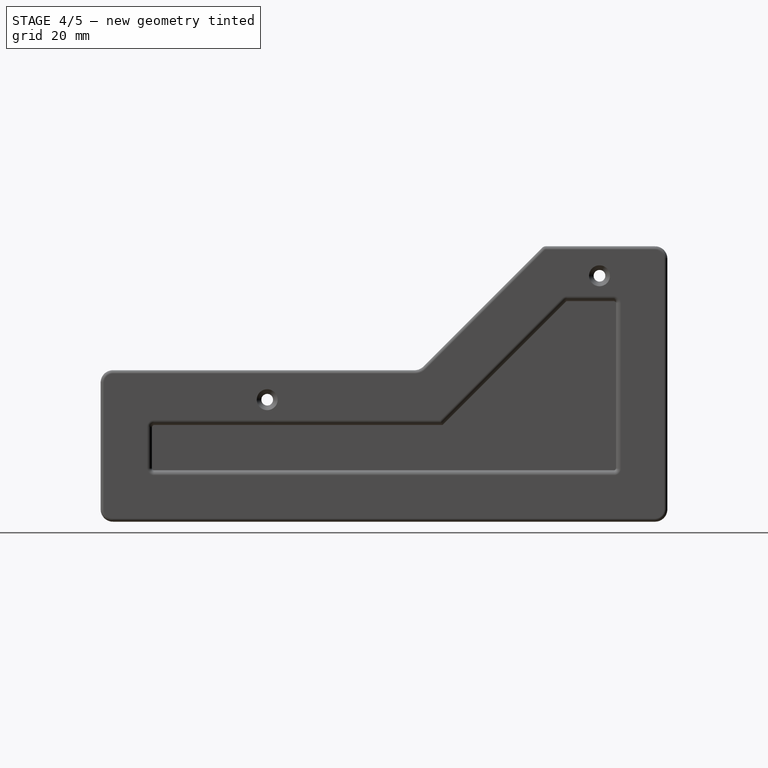
[diagram: stage 4 of 5 — right view after this stage's code; geometry added in this stage tinted green]
FEATURE [Spreadsheet::Sheet] Spreadsheet
  cells = A2='lengthA (min 30 max 200); B2=30; C2(lengthA)==B2 < 30 ? 30 : (B2 > 200 ? 200 : B2); A3='lengthB (min 20 max 160); B3=50; C3(lengthB)==B3 < 20 ? 20 : (B3 > 160 ? 160 : B3); A4='lengthC (min 30 max 200); B4=90; C4(lengthC)==B4 < 30 ? 30 : (B4 > 200 ? 200 : B4); A5='width (min 50 max 300); B5=100; C5(width)==B5 < 50 ? 50 : (B5 > 300 ? 300 : B5); A6='height (min 30 max 80); B6=36; C6(height)==B6 < 30 ? 30 : (B6 > 80 ? 80 : B6); A7='thickness (min 0.6 max 1.5); B7=0.8; C7(thickness)==B7 < 0.6 ? 0.6 : (B7 > 1.5 ? 1.5 : B7)
FEATURE [Sketcher::SketchObject] Sketch
  FullyConstrained = true
  MapMode = 5
  Support = -> [XY_Plane]
  expr: Constraints[7] = Spreadsheet.width
  expr: Constraints[8] = Spreadsheet.lengthC
  sketch-geometry (4):
    g0: LineSegment StartX=-50 StartY=90 StartZ=0 EndX=50 EndY=90 EndZ=0
    g1: LineSegment StartX=50 StartY=90 StartZ=0 EndX=50 EndY=0 EndZ=0
    g2: LineSegment StartX=50 StartY=0 StartZ=0 EndX=-50 EndY=0 EndZ=0
    g3: LineSegment StartX=-50 StartY=0 StartZ=0 EndX=-50 EndY=90 EndZ=0
  constraints (11):
    c: Coincident(g0,g1)
    c: Coincident(g1,g2)
    c: Coincident(g2,g3)
    c: Coincident(g3,g0)
    c: Horizontal(g2)
    c: Vertical(g1)
    c: Symmetric(g0,g0,g-2)
    c: DistanceX(g0,g0) = 100
    c: DistanceY(g1,g1) = 90
    c: PointOnObject(g2,g-1)
    c: Vertical(g3)
FEATURE [PartDesign::Pad] Pad
  Direction = (0,0,1)
  Length = 0.8
  Length2 = 10
  Profile = -> Sketch
  ReferenceAxis = -> Sketch [N_Axis]
  Type = 0
  expr: Length = Spreadsheet.thickness
FEATURE [PartDesign::FeaturePython] Bend  # WARN: FeaturePython — macro-defined, semantics opaque (R4)
  AutoMiter = true
  BaseFeature = -> Pad
  BendType = 0
  LengthList = [50]
  LengthSpec = 0
  ReliefFactor = 0.7
  UseReliefFactor = false
  angle = 45
  baseObject = -> Pad [Edge3]
  bendAList = [45]
  extend1 = 0
  extend2 = 0
  gap1 = 0
  gap2 = 0
  invert = false
  kfactor = 0.5
  length = 50
  maxExtendDist = 5
  minGap = 0.1
  minReliefGap = 1
  miterangle1 = 0
  miterangle2 = 0
  offset = 0
  radius = 0.8
  reliefType = 0
  reliefd = 1
  reliefw = 0.8
  sketchflip = false
  sketchinvert = false
  unfold = false
  expr: length = Spreadsheet.lengthB
  expr: radius = Spreadsheet.thickness
FEATURE [PartDesign::FeaturePython] Bend001  # WARN: FeaturePython — macro-defined, semantics opaque (R4)
  AutoMiter = true
  BaseFeature = -> Bend
  BendType = 0
  LengthList = [30]
  LengthSpec = 0
  ReliefFactor = 0.7
  UseReliefFactor = false
  angle = 45
  baseObject = -> Bend [Edge10]
  bendAList = [45]
  extend1 = 0
  extend2 = 0
  gap1 = 0
  gap2 = 0
  invert = false
  kfactor = 0.5
  length = 30
  maxExtendDist = 5
  minGap = 0.1
  minReliefGap = 1
  miterangle1 = 0
  miterangle2 = 0
  offset = 0
  radius = 0.8
  reliefType = 0
  reliefd = 1
  reliefw = 0.8
  sketchflip = false
  sketchinvert = false
  unfold = false
  expr: length = Spreadsheet.lengthA
  expr: radius = Spreadsheet.thickness
FEATURE [PartDesign::FeaturePython] Bend002  # WARN: FeaturePython — macro-defined, semantics opaque (R4)
  AutoMiter = true
  BaseFeature = -> Bend001
  BendType = 0
  LengthList = [71.9214]
  LengthSpec = 0
  ReliefFactor = 0.7
  UseReliefFactor = false
  angle = 90
  baseObject = -> Bend001 [Edge9]
  bendAList = [90]
  extend1 = 0
  extend2 = 0
  gap1 = 0
  gap2 = 0
  invert = false
  kfactor = 0.5
  length = 71.9214
  maxExtendDist = 5
  minGap = 0.1
  minReliefGap = 1
  miterangle1 = 0
  miterangle2 = 0
  offset = 0
  radius = 0.8
  reliefType = 0
  reliefd = 1
  reliefw = 0.8
  sketchflip = false
  sketchinvert = false
  unfold = false
  expr: length = Spreadsheet.height + (Spreadsheet.lengthB + Spreadsheet.thickness) / 1.4142
  expr: radius = Spreadsheet.thickness
FEATURE [PartDesign::FeaturePython] Bend003  # WARN: FeaturePython — macro-defined, semantics opaque (R4)
  AutoMiter = true
  BaseFeature = -> Bend002
  BendType = 0
  LengthList = [36]
  LengthSpec = 0
  ReliefFactor = 0.7
  UseReliefFactor = false
  angle = 90
  baseObject = -> Bend002 [Edge57]
  bendAList = [90]
  extend1 = 0
  extend2 = 0
  gap1 = 0
  gap2 = 0
  invert = false
  kfactor = 0.5
  length = 36
  maxExtendDist = 5
  minGap = 0.1
  minReliefGap = 1
  miterangle1 = 0
  miterangle2 = 0
  offset = 0
  radius = 0.8
  reliefType = 0
  reliefd = 1
  reliefw = 0.8
  sketchflip = false
  sketchinvert = false
  unfold = false
  expr: length = Spreadsheet.height
  expr: radius = Spreadsheet.thickness
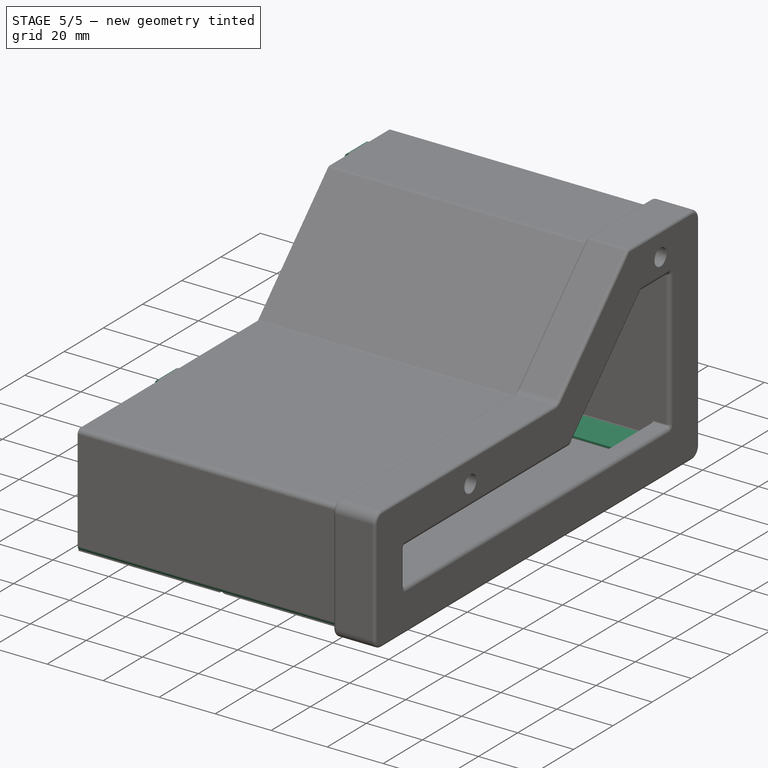
[diagram: stage 5 of 5 — iso view after this stage's code; geometry added in this stage tinted green]
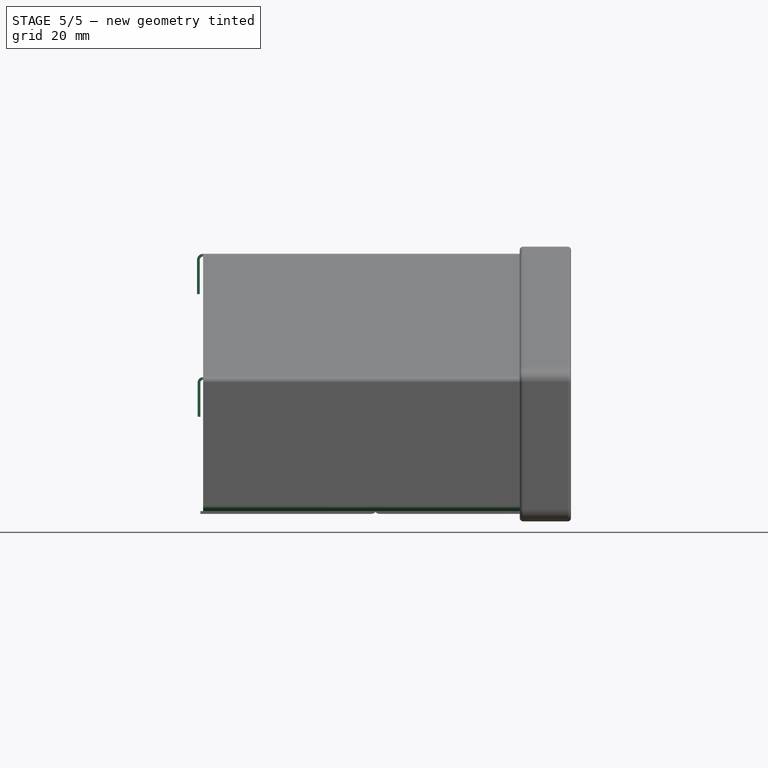
[diagram: stage 5 of 5 — front view after this stage's code; geometry added in this stage tinted green]
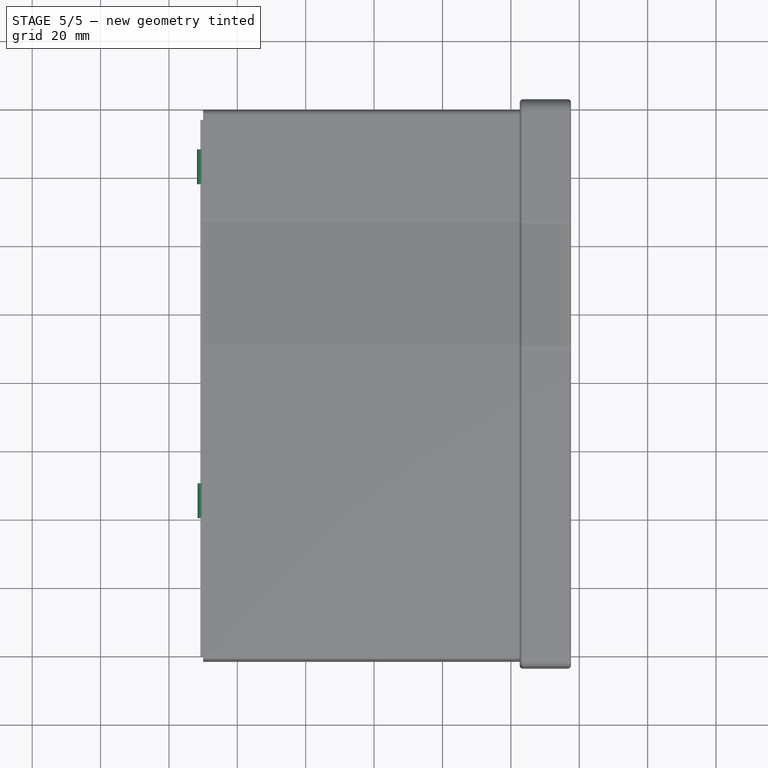
[diagram: stage 5 of 5 — top view after this stage's code; geometry added in this stage tinted green]
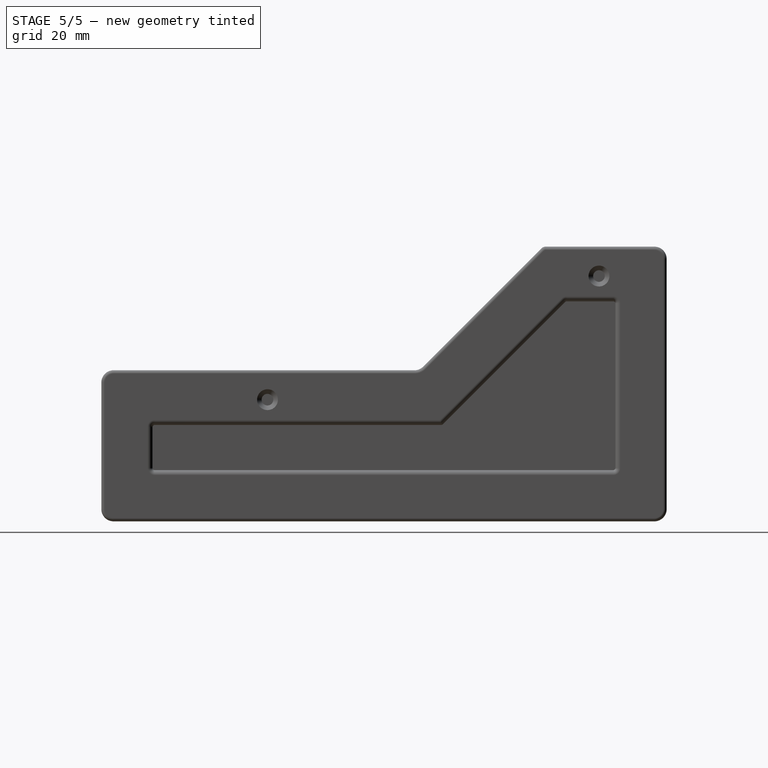
[diagram: stage 5 of 5 — right view after this stage's code; geometry added in this stage tinted green]
FEATURE [PartDesign::FeaturePython] Bend004  # WARN: FeaturePython — macro-defined, semantics opaque (R4)
  AutoMiter = true
  BaseFeature = -> Bend003
  BendType = 0
  LengthList = [12]
  LengthSpec = 0
  ReliefFactor = 0.7
  UseReliefFactor = false
  angle = 90
  baseObject = -> Bend003 [Edge73]
  bendAList = [90]
  extend1 = 0
  extend2 = 0
  gap1 = 0
  gap2 = 0
  invert = false
  kfactor = 0.5
  length = 12
  maxExtendDist = 5
  minGap = 0.1
  minReliefGap = 1
  miterangle1 = 0
  miterangle2 = 0
  offset = 0
  radius = 0.8
  reliefType = 0
  reliefd = 1
  reliefw = 0.8
  sketchflip = false
  sketchinvert = false
  unfold = false
  expr: radius = Spreadsheet.thickness
FEATURE [PartDesign::FeaturePython] Bend005  # WARN: FeaturePython — macro-defined, semantics opaque (R4)
  AutoMiter = true
  BaseFeature = -> Bend004
  BendType = 0
  LengthList = [12]
  LengthSpec = 0
  ReliefFactor = 0.7
  UseReliefFactor = false
  angle = 90
  baseObject = -> Bend004 [Edge89]
  bendAList = [90]
  extend1 = 0
  extend2 = 0
  gap1 = 0
  gap2 = 0
  invert = false
  kfactor = 0.5
  length = 12
  maxExtendDist = 5
  minGap = 0.1
  minReliefGap = 1
  miterangle1 = 0
  miterangle2 = 0
  offset = 0
  radius = 0.8
  reliefType = 0
  reliefd = 1
  reliefw = 0.8
  sketchflip = false
  sketchinvert = false
  unfold = false
  expr: radius = Spreadsheet.thickness
FEATURE [PartDesign::FeaturePython] Bend008  # WARN: FeaturePython — macro-defined, semantics opaque (R4)
  AutoMiter = false
  BaseFeature = -> Bend005
  BendType = 0
  LengthList = [10]
  LengthSpec = 0
  ReliefFactor = 0
  UseReliefFactor = false
  angle = 90
  baseObject = -> Bend005 [Edge38,Edge41]
  bendAList = [90]
  extend1 = 0
  extend2 = 0
  gap1 = 40
  gap2 = 40
  invert = false
  kfactor = 0.5
  length = 10
  maxExtendDist = 5
  minGap = 0.1
  minReliefGap = 1
  miterangle1 = 0
  miterangle2 = 0
  offset = 0
  radius = 0.8
  reliefType = 0
  reliefd = 0
  reliefw = 0
  sketchflip = false
  sketchinvert = false
  unfold = false
  expr: gap1 = Spreadsheet.lengthC / 2 - 5
  expr: gap2 = Spreadsheet.lengthC / 2 - 5
  expr: radius = Spreadsheet.thickness
FEATURE [PartDesign::FeaturePython] Bend009  # WARN: FeaturePython — macro-defined, semantics opaque (R4)
  AutoMiter = false
  BaseFeature = -> Bend008
  BendType = 0
  LengthList = [10]
  LengthSpec = 0
  ReliefFactor = 0
  UseReliefFactor = false
  angle = 90
  baseObject = -> Bend008 [Edge109,Edge107]
  bendAList = [90]
  extend1 = 0
  extend2 = 0
  gap1 = 10
  gap2 = 10
  invert = false
  kfactor = 0.5
  length = 10
  maxExtendDist = 5
  minGap = 0.1
  minReliefGap = 0
  miterangle1 = 0
  miterangle2 = 0
  offset = 0
  radius = 1
  reliefType = 0
  reliefd = 0
  reliefw = 0
  sketchflip = false
  sketchinvert = false
  unfold = false
  expr: gap1 = Spreadsheet.lengthA / 2 - 5
  expr: gap2 = Spreadsheet.lengthA / 2 - 5
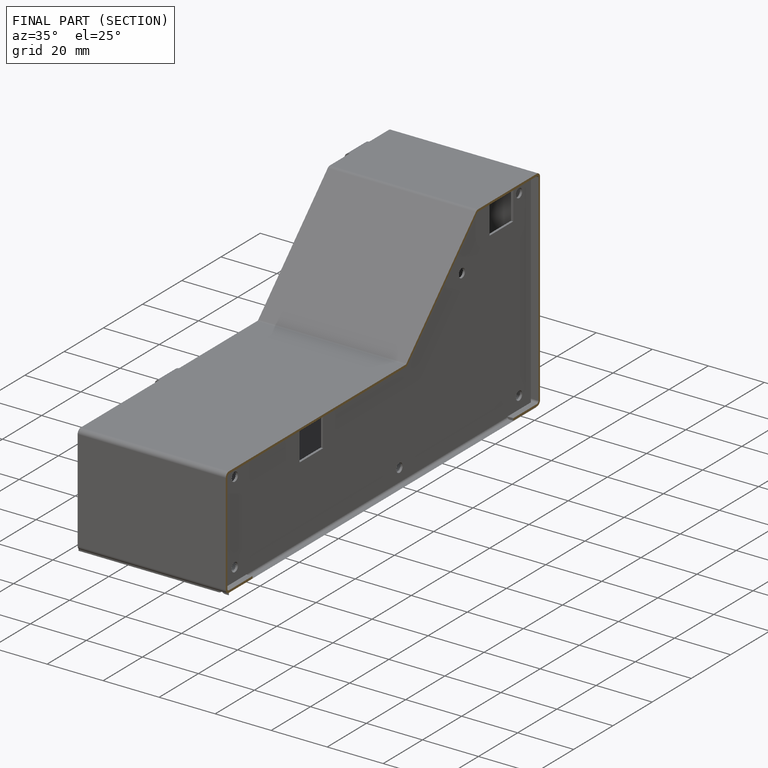
[diagram: finished part — half-section view (interior)]
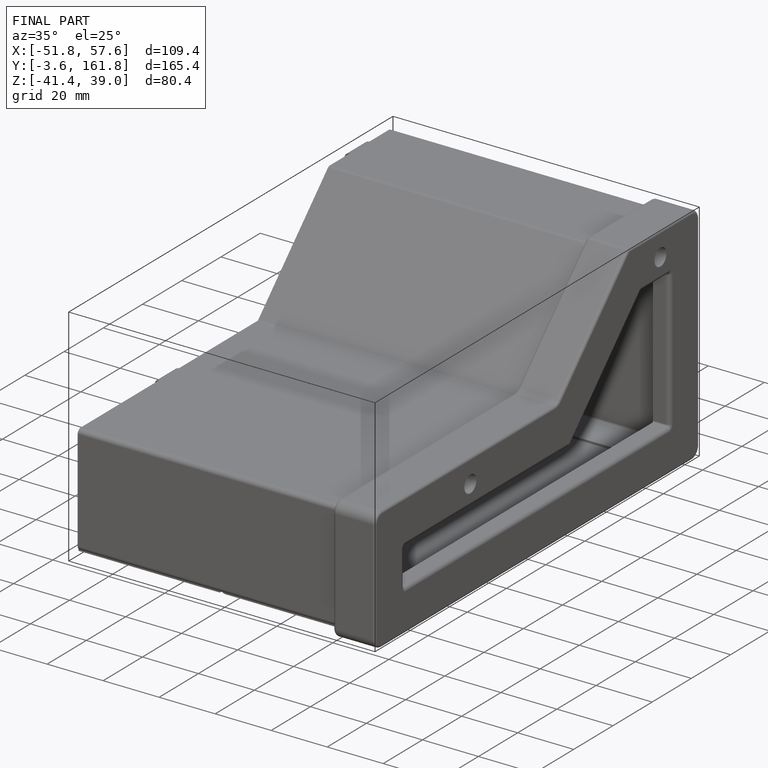
[diagram: finished part — iso view with bounding-box wireframe]
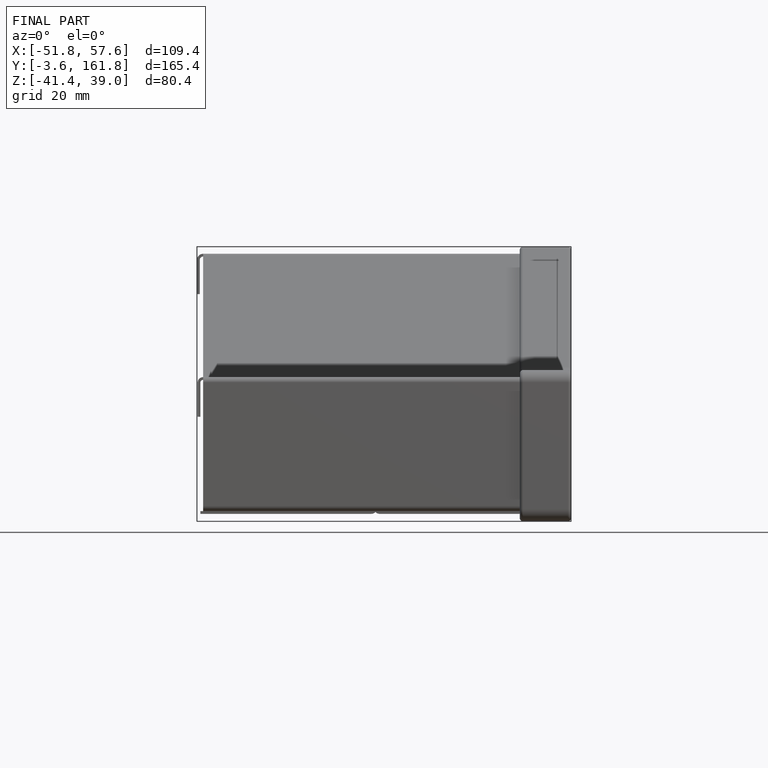
[diagram: finished part — front view with bounding-box wireframe]
